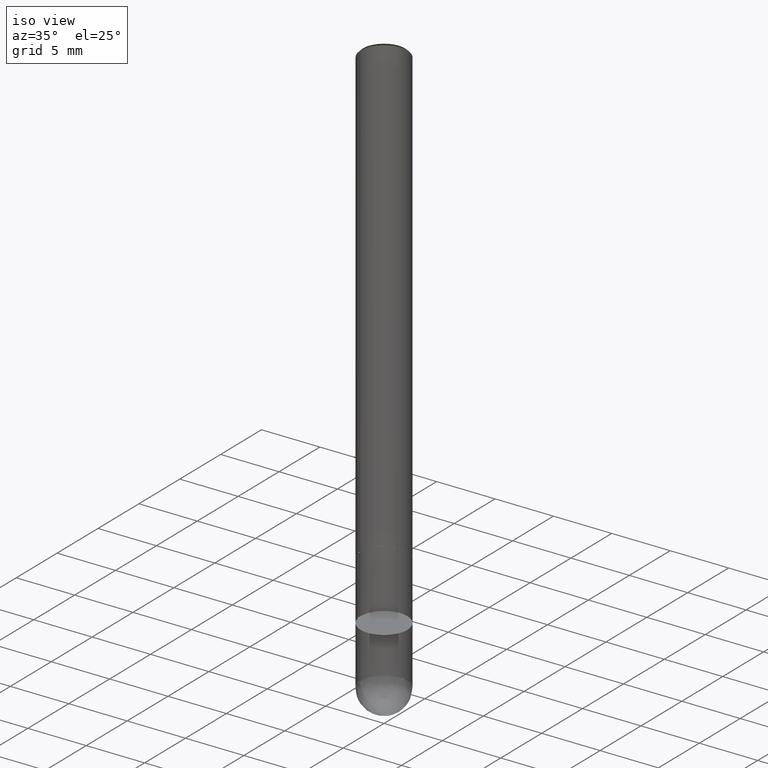
[diagram: clean part render]
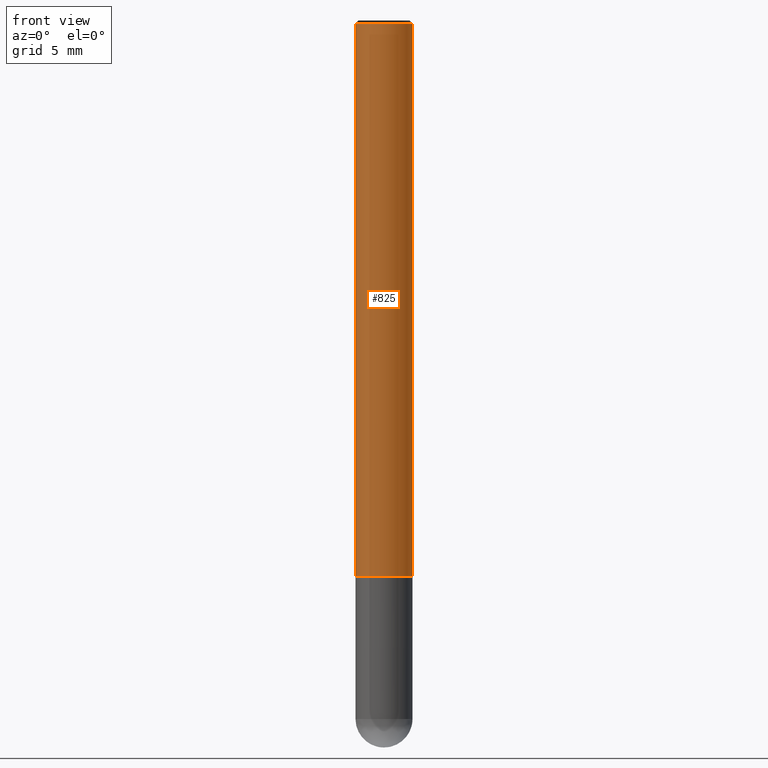
[diagram: tour spotlight — one face highlighted and labeled with its STEP entity id]
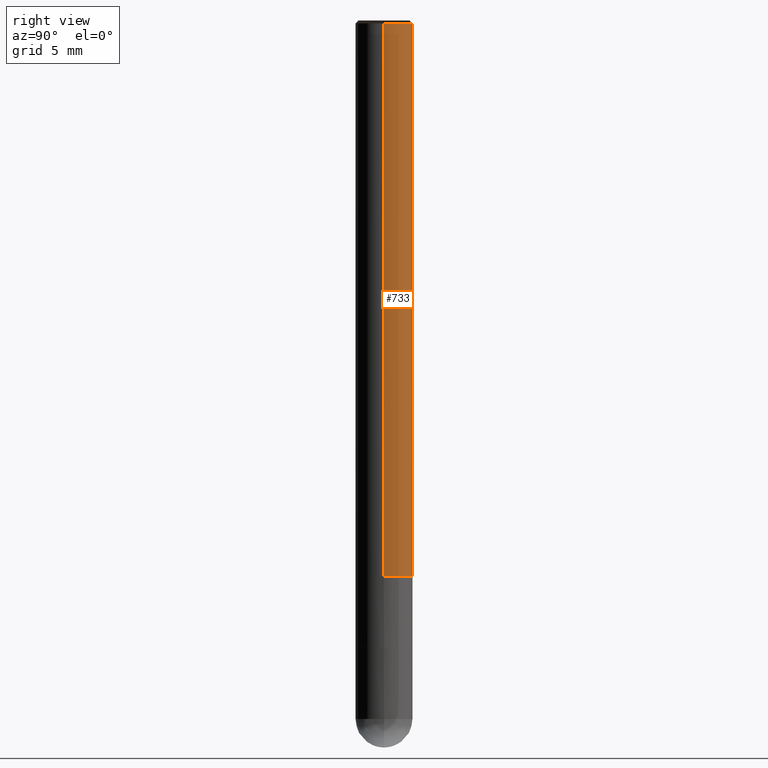
[diagram: tour spotlight — one face highlighted and labeled with its STEP entity id]
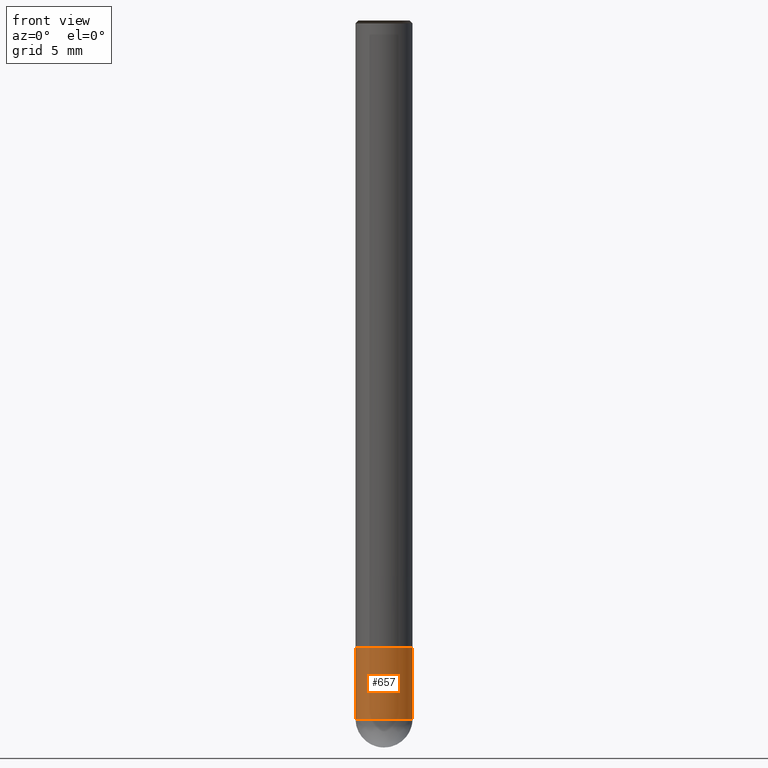
[diagram: tour spotlight — one face highlighted and labeled with its STEP entity id]
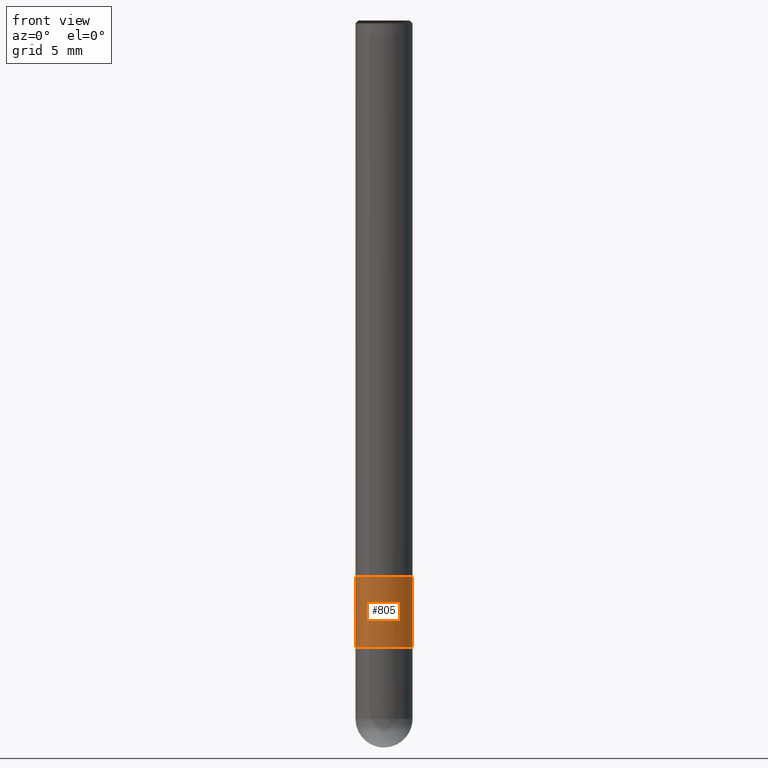
[diagram: tour spotlight — one face highlighted and labeled with its STEP entity id]
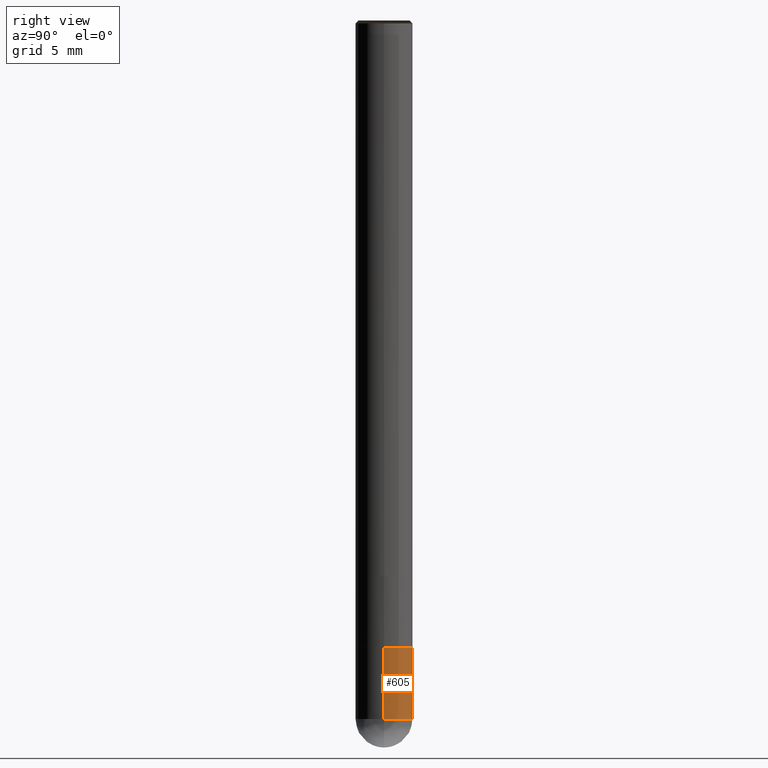
[diagram: tour spotlight — one face highlighted and labeled with its STEP entity id]
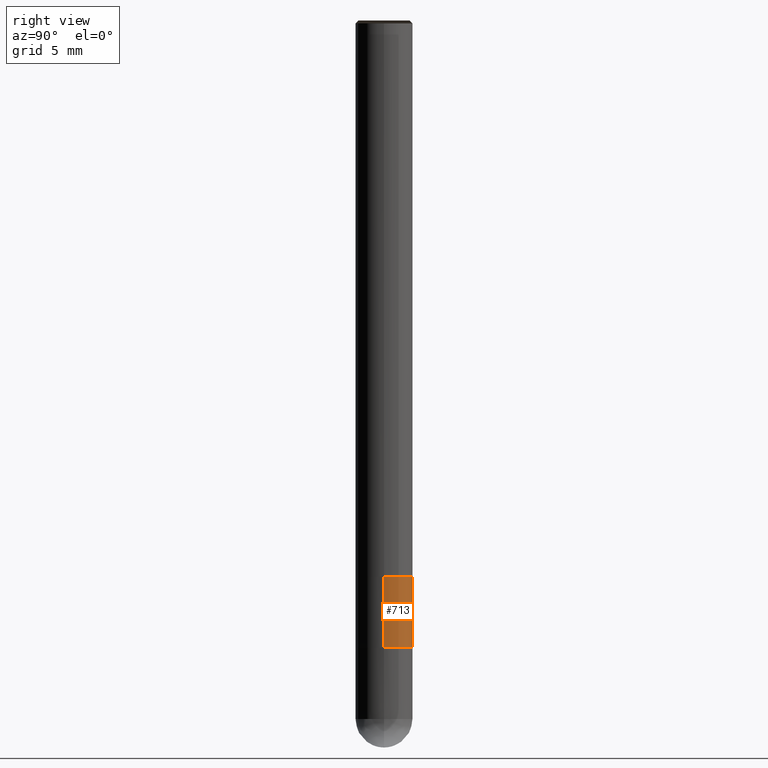
[diagram: tour spotlight — one face highlighted and labeled with its STEP entity id]
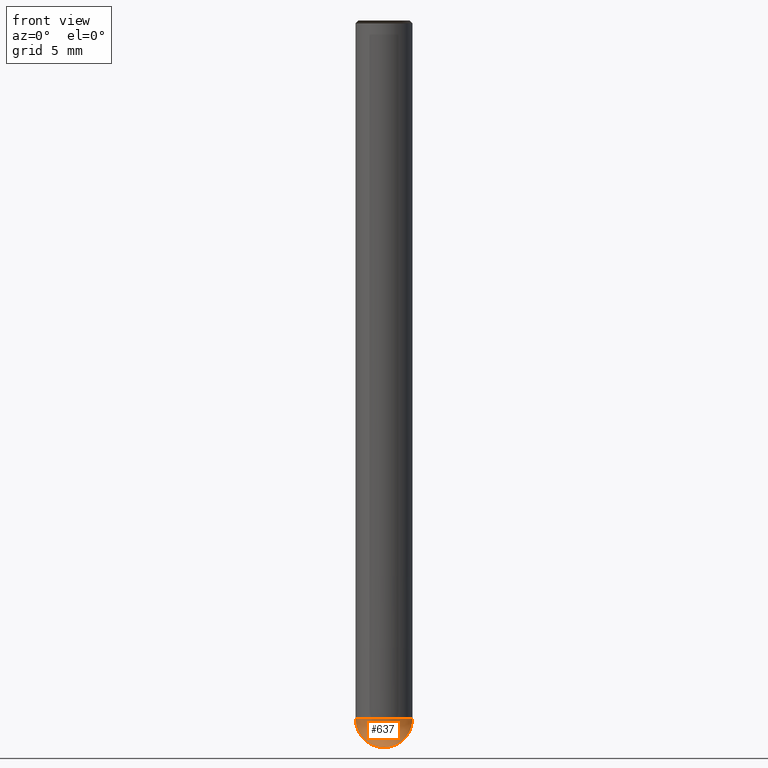
[diagram: tour spotlight — one face highlighted and labeled with its STEP entity id]
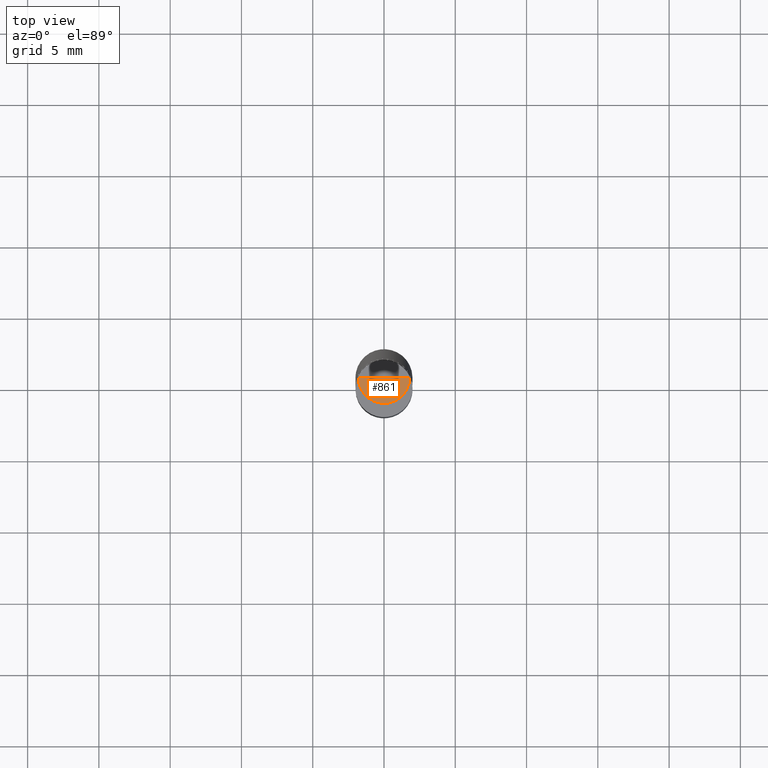
[diagram: tour spotlight — one face highlighted and labeled with its STEP entity id]
A machine part: a face-by-face anatomy tour. The part has 16 B-rep faces; the first image is the clean iso view, then the 8 largest visible faces are spotlighted one at a time (largest first), each with its STEP entity span.

Face 1 — front view, entity #825. In plain terms, the highlighted face is a freeform B-spline surface patch.
Definition (entity closure, byte-faithful):
#538=CARTESIAN_POINT('',(2.0,0.0,0.0));
#542=CARTESIAN_POINT('',(-2.0,0.0,0.0));
#543=CARTESIAN_POINT('',(2.0,0.0,38.8));
#547=CARTESIAN_POINT('',(-2.0,0.0,38.8));
#554=CARTESIAN_POINT('',(-2.0,-2.0,0.0));
#555=CARTESIAN_POINT('',(0.0,-2.0,0.0));
#556=CARTESIAN_POINT('',(2.0,-2.0,0.0));
#557=CARTESIAN_POINT('',(-2.0,-2.0,38.8));
#558=CARTESIAN_POINT('',(0.0,-2.0,38.8));
#559=CARTESIAN_POINT('',(2.0,-2.0,38.8));
#806=(
BOUNDED_SURFACE()
B_SPLINE_SURFACE(1,2,(
(#542,#554,#555,#556,#538),
(#547,#557,#558,#559,#543)
), .UNSPECIFIED.,.F.,.F.,.F.)
B_SPLINE_SURFACE_WITH_KNOTS((2,2),(3,2,3),(
0.0,1.0),(
0.0,0.5,1.0), .UNSPECIFIED.)
GEOMETRIC_REPRESENTATION_ITEM()
RATIONAL_B_SPLINE_SURFACE(((1.0,0.707106781187,1.0,0.707106781187,1.0),
(1.0,0.707106781187,1.0,0.707106781187,1.0)
))
REPRESENTATION_ITEM('')
SURFACE()
);
#807=(
BOUNDED_CURVE()
B_SPLINE_CURVE(2,(#538,#556,#555,#554,#542),.UNSPECIFIED.,.F.,.F.)
B_SPLINE_CURVE_WITH_KNOTS((3,2,3),
(0.0,0.5,1.0),.UNSPECIFIED.)
CURVE()
GEOMETRIC_REPRESENTATION_ITEM()
RATIONAL_B_SPLINE_CURVE((1.0,0.707106781187,1.0,0.707106781187,1.0))
REPRESENTATION_ITEM('')
);
#808=(
BOUNDED_CURVE()
B_SPLINE_CURVE(1,(#542,#547),.UNSPECIFIED.,.F.,.F.)
B_SPLINE_CURVE_WITH_KNOTS((2,2),
(0.0,1.0),.UNSPECIFIED.)
CURVE()
GEOMETRIC_REPRESENTATION_ITEM()
RATIONAL_B_SPLINE_CURVE((1.0,1.0))
REPRESENTATION_ITEM('')
);
#809=(
BOUNDED_CURVE()
B_SPLINE_CURVE(2,(#547,#557,#558,#559,#543),.UNSPECIFIED.,.F.,.F.)
B_SPLINE_CURVE_WITH_KNOTS((3,2,3),
(0.0,0.5,1.0),.UNSPECIFIED.)
CURVE()
GEOMETRIC_REPRESENTATION_ITEM()
RATIONAL_B_SPLINE_CURVE((1.0,0.707106781187,1.0,0.707106781187,1.0))
REPRESENTATION_ITEM('')
);
#810=(
BOUNDED_CURVE()
B_SPLINE_CURVE(1,(#543,#538),.UNSPECIFIED.,.F.,.F.)
B_SPLINE_CURVE_WITH_KNOTS((2,2),
(0.0,1.0),.UNSPECIFIED.)
CURVE()
GEOMETRIC_REPRESENTATION_ITEM()
RATIONAL_B_SPLINE_CURVE((1.0,1.0))
REPRESENTATION_ITEM('')
);
#811=VERTEX_POINT('',#538);
#812=VERTEX_POINT('',#542);
#813=VERTEX_POINT('',#543);
#814=VERTEX_POINT('',#547);
#815=EDGE_CURVE('',#811,#812,#807,.T.);
#816=EDGE_CURVE('',#812,#814,#808,.T.);
#817=EDGE_CURVE('',#814,#813,#809,.T.);
#818=EDGE_CURVE('',#813,#811,#810,.T.);
#819=ORIENTED_EDGE('',*,*,#815,.T.);
#820=ORIENTED_EDGE('',*,*,#816,.T.);
#821=ORIENTED_EDGE('',*,*,#817,.T.);
#822=ORIENTED_EDGE('',*,*,#818,.T.);
#823=EDGE_LOOP('',(#819,#820,#821,#822));
#824=FACE_OUTER_BOUND('',#823,.T.);
#825=ADVANCED_FACE('',(#824),#806,.T.);

Face 2 — right view, entity #733. In plain terms, the highlighted face is a freeform B-spline surface patch.
Definition (entity closure, byte-faithful):
#538=CARTESIAN_POINT('',(2.0,0.0,0.0));
#539=CARTESIAN_POINT('',(2.0,2.0,0.0));
#540=CARTESIAN_POINT('',(0.0,2.0,0.0));
#541=CARTESIAN_POINT('',(-2.0,2.0,0.0));
#542=CARTESIAN_POINT('',(-2.0,0.0,0.0));
#543=CARTESIAN_POINT('',(2.0,0.0,38.8));
#544=CARTESIAN_POINT('',(2.0,2.0,38.8));
#545=CARTESIAN_POINT('',(0.0,2.0,38.8));
#546=CARTESIAN_POINT('',(-2.0,2.0,38.8));
#547=CARTESIAN_POINT('',(-2.0,0.0,38.8));
#714=(
BOUNDED_SURFACE()
B_SPLINE_SURFACE(1,2,(
(#538,#539,#540,#541,#542),
(#543,#544,#545,#546,#547)
), .UNSPECIFIED.,.F.,.F.,.F.)
B_SPLINE_SURFACE_WITH_KNOTS((2,2),(3,2,3),(
0.0,1.0),(
0.0,0.5,1.0), .UNSPECIFIED.)
GEOMETRIC_REPRESENTATION_ITEM()
RATIONAL_B_SPLINE_SURFACE(((1.0,0.707106781187,1.0,0.707106781187,1.0),
(1.0,0.707106781187,1.0,0.707106781187,1.0)
))
REPRESENTATION_ITEM('')
SURFACE()
);
#715=(
BOUNDED_CURVE()
B_SPLINE_CURVE(2,(#542,#541,#540,#539,#538),.UNSPECIFIED.,.F.,.F.)
B_SPLINE_CURVE_WITH_KNOTS((3,2,3),
(0.0,0.5,1.0),.UNSPECIFIED.)
CURVE()
GEOMETRIC_REPRESENTATION_ITEM()
RATIONAL_B_SPLINE_CURVE((1.0,0.707106781187,1.0,0.707106781187,1.0))
REPRESENTATION_ITEM('')
);
#716=(
BOUNDED_CURVE()
B_SPLINE_CURVE(1,(#538,#543),.UNSPECIFIED.,.F.,.F.)
B_SPLINE_CURVE_WITH_KNOTS((2,2),
(0.0,1.0),.UNSPECIFIED.)
CURVE()
GEOMETRIC_REPRESENTATION_ITEM()
RATIONAL_B_SPLINE_CURVE((1.0,1.0))
REPRESENTATION_ITEM('')
);
#717=(
BOUNDED_CURVE()
B_SPLINE_CURVE(2,(#543,#544,#545,#546,#547),.UNSPECIFIED.,.F.,.F.)
B_SPLINE_CURVE_WITH_KNOTS((3,2,3),
(0.0,0.5,1.0),.UNSPECIFIED.)
CURVE()
GEOMETRIC_REPRESENTATION_ITEM()
RATIONAL_B_SPLINE_CURVE((1.0,0.707106781187,1.0,0.707106781187,1.0))
REPRESENTATION_ITEM('')
);
#718=(
BOUNDED_CURVE()
B_SPLINE_CURVE(1,(#547,#542),.UNSPECIFIED.,.F.,.F.)
B_SPLINE_CURVE_WITH_KNOTS((2,2),
(0.0,1.0),.UNSPECIFIED.)
CURVE()
GEOMETRIC_REPRESENTATION_ITEM()
RATIONAL_B_SPLINE_CURVE((1.0,1.0))
REPRESENTATION_ITEM('')
);
#719=VERTEX_POINT('',#538);
#720=VERTEX_POINT('',#542);
#721=VERTEX_POINT('',#543);
#722=VERTEX_POINT('',#547);
#723=EDGE_CURVE('',#720,#719,#715,.T.);
#724=EDGE_CURVE('',#719,#721,#716,.T.);
#725=EDGE_CURVE('',#721,#722,#717,.T.);
#726=EDGE_CURVE('',#722,#720,#718,.T.);
#727=ORIENTED_EDGE('',*,*,#723,.T.);
#728=ORIENTED_EDGE('',*,*,#724,.T.);
#729=ORIENTED_EDGE('',*,*,#725,.T.);
#730=ORIENTED_EDGE('',*,*,#726,.T.);
#731=EDGE_LOOP('',(#727,#728,#729,#730));
#732=FACE_OUTER_BOUND('',#731,.T.);
#733=ADVANCED_FACE('',(#732),#714,.T.);

Face 3 — front view, entity #657. In plain terms, the highlighted face is a freeform B-spline surface patch.
Definition (entity closure, byte-faithful):
#518=CARTESIAN_POINT('',(2.0,0.0,-10.0));
#522=CARTESIAN_POINT('',(-2.0,0.0,-10.0));
#523=CARTESIAN_POINT('',(2.0,0.0,-5.0));
#527=CARTESIAN_POINT('',(-2.0,0.0,-5.0));
#532=CARTESIAN_POINT('',(-2.0,-2.0,-10.0));
#533=CARTESIAN_POINT('',(0.0,-2.0,-10.0));
#534=CARTESIAN_POINT('',(2.0,-2.0,-10.0));
#535=CARTESIAN_POINT('',(-2.0,-2.0,-5.0));
#536=CARTESIAN_POINT('',(0.0,-2.0,-5.0));
#537=CARTESIAN_POINT('',(2.0,-2.0,-5.0));
#638=(
BOUNDED_SURFACE()
B_SPLINE_SURFACE(1,2,(
(#522,#532,#533,#534,#518),
(#527,#535,#536,#537,#523)
), .UNSPECIFIED.,.F.,.F.,.F.)
B_SPLINE_SURFACE_WITH_KNOTS((2,2),(3,2,3),(
0.0,1.0),(
0.0,0.5,1.0), .UNSPECIFIED.)
GEOMETRIC_REPRESENTATION_ITEM()
RATIONAL_B_SPLINE_SURFACE(((1.0,0.707106781187,1.0,0.707106781187,1.0),
(1.0,0.707106781187,1.0,0.707106781187,1.0)
))
REPRESENTATION_ITEM('')
SURFACE()
);
#639=(
BOUNDED_CURVE()
B_SPLINE_CURVE(2,(#518,#534,#533,#532,#522),.UNSPECIFIED.,.F.,.F.)
B_SPLINE_CURVE_WITH_KNOTS((3,2,3),
(0.0,0.5,1.0),.UNSPECIFIED.)
CURVE()
GEOMETRIC_REPRESENTATION_ITEM()
RATIONAL_B_SPLINE_CURVE((1.0,0.707106781187,1.0,0.707106781187,1.0))
REPRESENTATION_ITEM('')
);
#640=(
BOUNDED_CURVE()
B_SPLINE_CURVE(1,(#522,#527),.UNSPECIFIED.,.F.,.F.)
B_SPLINE_CURVE_WITH_KNOTS((2,2),
(0.0,1.0),.UNSPECIFIED.)
CURVE()
GEOMETRIC_REPRESENTATION_ITEM()
RATIONAL_B_SPLINE_CURVE((1.0,1.0))
REPRESENTATION_ITEM('')
);
#641=(
BOUNDED_CURVE()
B_SPLINE_CURVE(2,(#527,#535,#536,#537,#523),.UNSPECIFIED.,.F.,.F.)
B_SPLINE_CURVE_WITH_KNOTS((3,2,3),
(0.0,0.5,1.0),.UNSPECIFIED.)
CURVE()
GEOMETRIC_REPRESENTATION_ITEM()
RATIONAL_B_SPLINE_CURVE((1.0,0.707106781187,1.0,0.707106781187,1.0))
REPRESENTATION_ITEM('')
);
#642=(
BOUNDED_CURVE()
B_SPLINE_CURVE(1,(#523,#518),.UNSPECIFIED.,.F.,.F.)
B_SPLINE_CURVE_WITH_KNOTS((2,2),
(0.0,1.0),.UNSPECIFIED.)
CURVE()
GEOMETRIC_REPRESENTATION_ITEM()
RATIONAL_B_SPLINE_CURVE((1.0,1.0))
REPRESENTATION_ITEM('')
);
#643=VERTEX_POINT('',#518);
#644=VERTEX_POINT('',#522);
#645=VERTEX_POINT('',#523);
#646=VERTEX_POINT('',#527);
#647=EDGE_CURVE('',#643,#644,#639,.T.);
#648=EDGE_CURVE('',#644,#646,#640,.T.);
#649=EDGE_CURVE('',#646,#645,#641,.T.);
#650=EDGE_CURVE('',#645,#643,#642,.T.);
#651=ORIENTED_EDGE('',*,*,#647,.T.);
#652=ORIENTED_EDGE('',*,*,#648,.T.);
#653=ORIENTED_EDGE('',*,*,#649,.T.);
#654=ORIENTED_EDGE('',*,*,#650,.T.);
#655=EDGE_LOOP('',(#651,#652,#653,#654));
#656=FACE_OUTER_BOUND('',#655,.T.);
#657=ADVANCED_FACE('',(#656),#638,.T.);

Face 4 — front view, entity #805. In plain terms, the highlighted face is a freeform B-spline surface patch.
Definition (entity closure, byte-faithful):
#523=CARTESIAN_POINT('',(2.0,0.0,-5.0));
#527=CARTESIAN_POINT('',(-2.0,0.0,-5.0));
#535=CARTESIAN_POINT('',(-2.0,-2.0,-5.0));
#536=CARTESIAN_POINT('',(0.0,-2.0,-5.0));
#537=CARTESIAN_POINT('',(2.0,-2.0,-5.0));
#538=CARTESIAN_POINT('',(2.0,0.0,0.0));
#542=CARTESIAN_POINT('',(-2.0,0.0,0.0));
#554=CARTESIAN_POINT('',(-2.0,-2.0,0.0));
#555=CARTESIAN_POINT('',(0.0,-2.0,0.0));
#556=CARTESIAN_POINT('',(2.0,-2.0,0.0));
#786=(
BOUNDED_SURFACE()
B_SPLINE_SURFACE(1,2,(
(#527,#535,#536,#537,#523),
(#542,#554,#555,#556,#538)
), .UNSPECIFIED.,.F.,.F.,.F.)
B_SPLINE_SURFACE_WITH_KNOTS((2,2),(3,2,3),(
0.0,1.0),(
0.0,0.5,1.0), .UNSPECIFIED.)
GEOMETRIC_REPRESENTATION_ITEM()
RATIONAL_B_SPLINE_SURFACE(((1.0,0.707106781187,1.0,0.707106781187,1.0),
(1.0,0.707106781187,1.0,0.707106781187,1.0)
))
REPRESENTATION_ITEM('')
SURFACE()
);
#787=(
BOUNDED_CURVE()
B_SPLINE_CURVE(2,(#523,#537,#536,#535,#527),.UNSPECIFIED.,.F.,.F.)
B_SPLINE_CURVE_WITH_KNOTS((3,2,3),
(0.0,0.5,1.0),.UNSPECIFIED.)
CURVE()
GEOMETRIC_REPRESENTATION_ITEM()
RATIONAL_B_SPLINE_CURVE((1.0,0.707106781187,1.0,0.707106781187,1.0))
REPRESENTATION_ITEM('')
);
#788=(
BOUNDED_CURVE()
B_SPLINE_CURVE(1,(#527,#542),.UNSPECIFIED.,.F.,.F.)
B_SPLINE_CURVE_WITH_KNOTS((2,2),
(0.0,1.0),.UNSPECIFIED.)
CURVE()
GEOMETRIC_REPRESENTATION_ITEM()
RATIONAL_B_SPLINE_CURVE((1.0,1.0))
REPRESENTATION_ITEM('')
);
#789=(
BOUNDED_CURVE()
B_SPLINE_CURVE(2,(#542,#554,#555,#556,#538),.UNSPECIFIED.,.F.,.F.)
B_SPLINE_CURVE_WITH_KNOTS((3,2,3),
(0.0,0.5,1.0),.UNSPECIFIED.)
CURVE()
GEOMETRIC_REPRESENTATION_ITEM()
RATIONAL_B_SPLINE_CURVE((1.0,0.707106781187,1.0,0.707106781187,1.0))
REPRESENTATION_ITEM('')
);
#790=(
BOUNDED_CURVE()
B_SPLINE_CURVE(1,(#538,#523),.UNSPECIFIED.,.F.,.F.)
B_SPLINE_CURVE_WITH_KNOTS((2,2),
(0.0,1.0),.UNSPECIFIED.)
CURVE()
GEOMETRIC_REPRESENTATION_ITEM()
RATIONAL_B_SPLINE_CURVE((1.0,1.0))
REPRESENTATION_ITEM('')
);
#791=VERTEX_POINT('',#523);
#792=VERTEX_POINT('',#527);
#793=VERTEX_POINT('',#538);
#794=VERTEX_POINT('',#542);
#795=EDGE_CURVE('',#791,#792,#787,.T.);
#796=EDGE_CURVE('',#792,#794,#788,.T.);
#797=EDGE_CURVE('',#794,#793,#789,.T.);
#798=EDGE_CURVE('',#793,#791,#790,.T.);
#799=ORIENTED_EDGE('',*,*,#795,.T.);
#800=ORIENTED_EDGE('',*,*,#796,.T.);
#801=ORIENTED_EDGE('',*,*,#797,.T.);
#802=ORIENTED_EDGE('',*,*,#798,.T.);
#803=EDGE_LOOP('',(#799,#800,#801,#802));
#804=FACE_OUTER_BOUND('',#803,.T.);
#805=ADVANCED_FACE('',(#804),#786,.T.);

Face 5 — right view, entity #605. In plain terms, the highlighted face is a freeform B-spline surface patch.
Definition (entity closure, byte-faithful):
#518=CARTESIAN_POINT('',(2.0,0.0,-10.0));
#519=CARTESIAN_POINT('',(2.0,2.0,-10.0));
#520=CARTESIAN_POINT('',(0.0,2.0,-10.0));
#521=CARTESIAN_POINT('',(-2.0,2.0,-10.0));
#522=CARTESIAN_POINT('',(-2.0,0.0,-10.0));
#523=CARTESIAN_POINT('',(2.0,0.0,-5.0));
#524=CARTESIAN_POINT('',(2.0,2.0,-5.0));
#525=CARTESIAN_POINT('',(0.0,2.0,-5.0));
#526=CARTESIAN_POINT('',(-2.0,2.0,-5.0));
#527=CARTESIAN_POINT('',(-2.0,0.0,-5.0));
#586=(
BOUNDED_SURFACE()
B_SPLINE_SURFACE(1,2,(
(#518,#519,#520,#521,#522),
(#523,#524,#525,#526,#527)
), .UNSPECIFIED.,.F.,.F.,.F.)
B_SPLINE_SURFACE_WITH_KNOTS((2,2),(3,2,3),(
0.0,1.0),(
0.0,0.5,1.0), .UNSPECIFIED.)
GEOMETRIC_REPRESENTATION_ITEM()
RATIONAL_B_SPLINE_SURFACE(((1.0,0.707106781187,1.0,0.707106781187,1.0),
(1.0,0.707106781187,1.0,0.707106781187,1.0)
))
REPRESENTATION_ITEM('')
SURFACE()
);
#587=(
BOUNDED_CURVE()
B_SPLINE_CURVE(2,(#522,#521,#520,#519,#518),.UNSPECIFIED.,.F.,.F.)
B_SPLINE_CURVE_WITH_KNOTS((3,2,3),
(0.0,0.5,1.0),.UNSPECIFIED.)
CURVE()
GEOMETRIC_REPRESENTATION_ITEM()
RATIONAL_B_SPLINE_CURVE((1.0,0.707106781187,1.0,0.707106781187,1.0))
REPRESENTATION_ITEM('')
);
#588=(
BOUNDED_CURVE()
B_SPLINE_CURVE(1,(#518,#523),.UNSPECIFIED.,.F.,.F.)
B_SPLINE_CURVE_WITH_KNOTS((2,2),
(0.0,1.0),.UNSPECIFIED.)
CURVE()
GEOMETRIC_REPRESENTATION_ITEM()
RATIONAL_B_SPLINE_CURVE((1.0,1.0))
REPRESENTATION_ITEM('')
);
#589=(
BOUNDED_CURVE()
B_SPLINE_CURVE(2,(#523,#524,#525,#526,#527),.UNSPECIFIED.,.F.,.F.)
B_SPLINE_CURVE_WITH_KNOTS((3,2,3),
(0.0,0.5,1.0),.UNSPECIFIED.)
CURVE()
GEOMETRIC_REPRESENTATION_ITEM()
RATIONAL_B_SPLINE_CURVE((1.0,0.707106781187,1.0,0.707106781187,1.0))
REPRESENTATION_ITEM('')
);
#590=(
BOUNDED_CURVE()
B_SPLINE_CURVE(1,(#527,#522),.UNSPECIFIED.,.F.,.F.)
B_SPLINE_CURVE_WITH_KNOTS((2,2),
(0.0,1.0),.UNSPECIFIED.)
CURVE()
GEOMETRIC_REPRESENTATION_ITEM()
RATIONAL_B_SPLINE_CURVE((1.0,1.0))
REPRESENTATION_ITEM('')
);
#591=VERTEX_POINT('',#518);
#592=VERTEX_POINT('',#522);
#593=VERTEX_POINT('',#523);
#594=VERTEX_POINT('',#527);
#595=EDGE_CURVE('',#592,#591,#587,.T.);
#596=EDGE_CURVE('',#591,#593,#588,.T.);
#597=EDGE_CURVE('',#593,#594,#589,.T.);
#598=EDGE_CURVE('',#594,#592,#590,.T.);
#599=ORIENTED_EDGE('',*,*,#595,.T.);
#600=ORIENTED_EDGE('',*,*,#596,.T.);
#601=ORIENTED_EDGE('',*,*,#597,.T.);
#602=ORIENTED_EDGE('',*,*,#598,.T.);
#603=EDGE_LOOP('',(#599,#600,#601,#602));
#604=FACE_OUTER_BOUND('',#603,.T.);
#605=ADVANCED_FACE('',(#604),#586,.T.);

Face 6 — right view, entity #713. In plain terms, the highlighted face is a freeform B-spline surface patch.
Definition (entity closure, byte-faithful):
#523=CARTESIAN_POINT('',(2.0,0.0,-5.0));
#524=CARTESIAN_POINT('',(2.0,2.0,-5.0));
#525=CARTESIAN_POINT('',(0.0,2.0,-5.0));
#526=CARTESIAN_POINT('',(-2.0,2.0,-5.0));
#527=CARTESIAN_POINT('',(-2.0,0.0,-5.0));
#538=CARTESIAN_POINT('',(2.0,0.0,0.0));
#539=CARTESIAN_POINT('',(2.0,2.0,0.0));
#540=CARTESIAN_POINT('',(0.0,2.0,0.0));
#541=CARTESIAN_POINT('',(-2.0,2.0,0.0));
#542=CARTESIAN_POINT('',(-2.0,0.0,0.0));
#694=(
BOUNDED_SURFACE()
B_SPLINE_SURFACE(1,2,(
(#523,#524,#525,#526,#527),
(#538,#539,#540,#541,#542)
), .UNSPECIFIED.,.F.,.F.,.F.)
B_SPLINE_SURFACE_WITH_KNOTS((2,2),(3,2,3),(
0.0,1.0),(
0.0,0.5,1.0), .UNSPECIFIED.)
GEOMETRIC_REPRESENTATION_ITEM()
RATIONAL_B_SPLINE_SURFACE(((1.0,0.707106781187,1.0,0.707106781187,1.0),
(1.0,0.707106781187,1.0,0.707106781187,1.0)
))
REPRESENTATION_ITEM('')
SURFACE()
);
#695=(
BOUNDED_CURVE()
B_SPLINE_CURVE(2,(#527,#526,#525,#524,#523),.UNSPECIFIED.,.F.,.F.)
B_SPLINE_CURVE_WITH_KNOTS((3,2,3),
(0.0,0.5,1.0),.UNSPECIFIED.)
CURVE()
GEOMETRIC_REPRESENTATION_ITEM()
RATIONAL_B_SPLINE_CURVE((1.0,0.707106781187,1.0,0.707106781187,1.0))
REPRESENTATION_ITEM('')
);
#696=(
BOUNDED_CURVE()
B_SPLINE_CURVE(1,(#523,#538),.UNSPECIFIED.,.F.,.F.)
B_SPLINE_CURVE_WITH_KNOTS((2,2),
(0.0,1.0),.UNSPECIFIED.)
CURVE()
GEOMETRIC_REPRESENTATION_ITEM()
RATIONAL_B_SPLINE_CURVE((1.0,1.0))
REPRESENTATION_ITEM('')
);
#697=(
BOUNDED_CURVE()
B_SPLINE_CURVE(2,(#538,#539,#540,#541,#542),.UNSPECIFIED.,.F.,.F.)
B_SPLINE_CURVE_WITH_KNOTS((3,2,3),
(0.0,0.5,1.0),.UNSPECIFIED.)
CURVE()
GEOMETRIC_REPRESENTATION_ITEM()
RATIONAL_B_SPLINE_CURVE((1.0,0.707106781187,1.0,0.707106781187,1.0))
REPRESENTATION_ITEM('')
);
#698=(
BOUNDED_CURVE()
B_SPLINE_CURVE(1,(#542,#527),.UNSPECIFIED.,.F.,.F.)
B_SPLINE_CURVE_WITH_KNOTS((2,2),
(0.0,1.0),.UNSPECIFIED.)
CURVE()
GEOMETRIC_REPRESENTATION_ITEM()
RATIONAL_B_SPLINE_CURVE((1.0,1.0))
REPRESENTATION_ITEM('')
);
#699=VERTEX_POINT('',#523);
#700=VERTEX_POINT('',#527);
#701=VERTEX_POINT('',#538);
#702=VERTEX_POINT('',#542);
#703=EDGE_CURVE('',#700,#699,#695,.T.);
#704=EDGE_CURVE('',#699,#701,#696,.T.);
#705=EDGE_CURVE('',#701,#702,#697,.T.);
#706=EDGE_CURVE('',#702,#700,#698,.T.);
#707=ORIENTED_EDGE('',*,*,#703,.T.);
#708=ORIENTED_EDGE('',*,*,#704,.T.);
#709=ORIENTED_EDGE('',*,*,#705,.T.);
#710=ORIENTED_EDGE('',*,*,#706,.T.);
#711=EDGE_LOOP('',(#707,#708,#709,#710));
#712=FACE_OUTER_BOUND('',#711,.T.);
#713=ADVANCED_FACE('',(#712),#694,.T.);

Face 7 — front view, entity #637. In plain terms, the highlighted face is a freeform B-spline surface patch.
Definition (entity closure, byte-faithful):
#512=CARTESIAN_POINT('',(0.0,0.0,-12.0));
#513=CARTESIAN_POINT('',(2.0,0.0,-12.0));
#517=CARTESIAN_POINT('',(-2.0,0.0,-12.0));
#518=CARTESIAN_POINT('',(2.0,0.0,-10.0));
#522=CARTESIAN_POINT('',(-2.0,0.0,-10.0));
#529=CARTESIAN_POINT('',(-2.0,-2.0,-12.0));
#530=CARTESIAN_POINT('',(0.0,-2.0,-12.0));
#531=CARTESIAN_POINT('',(2.0,-2.0,-12.0));
#532=CARTESIAN_POINT('',(-2.0,-2.0,-10.0));
#533=CARTESIAN_POINT('',(0.0,-2.0,-10.0));
#534=CARTESIAN_POINT('',(2.0,-2.0,-10.0));
#622=(
BOUNDED_SURFACE()
B_SPLINE_SURFACE(2,2,(
(#512,#512,#512,#512,#512),
(#517,#529,#530,#531,#513),
(#522,#532,#533,#534,#518)
), .UNSPECIFIED.,.F.,.F.,.F.)
B_SPLINE_SURFACE_WITH_KNOTS((3,3),(3,2,3),(
0.0,1.0),(
0.0,0.5,1.0), .UNSPECIFIED.)
GEOMETRIC_REPRESENTATION_ITEM()
RATIONAL_B_SPLINE_SURFACE(((1.0,0.707106781187,1.0,0.707106781187,1.0),
(0.707106781187,0.5,0.707106781187,0.5,0.707106781187),
(1.0,0.707106781187,1.0,0.707106781187,1.0)
))
REPRESENTATION_ITEM('')
SURFACE()
);
#623=(
BOUNDED_CURVE()
B_SPLINE_CURVE(2,(#518,#513,#512),.UNSPECIFIED.,.F.,.F.)
B_SPLINE_CURVE_WITH_KNOTS((3,3),
(0.0,1.0),.UNSPECIFIED.)
CURVE()
GEOMETRIC_REPRESENTATION_ITEM()
RATIONAL_B_SPLINE_CURVE((1.0,0.707106781187,1.0))
REPRESENTATION_ITEM('')
);
#624=(
BOUNDED_CURVE()
B_SPLINE_CURVE(2,(#512,#517,#522),.UNSPECIFIED.,.F.,.F.)
B_SPLINE_CURVE_WITH_KNOTS((3,3),
(0.0,1.0),.UNSPECIFIED.)
CURVE()
GEOMETRIC_REPRESENTATION_ITEM()
RATIONAL_B_SPLINE_CURVE((1.0,0.707106781187,1.0))
REPRESENTATION_ITEM('')
);
#625=(
BOUNDED_CURVE()
B_SPLINE_CURVE(2,(#522,#532,#533,#534,#518),.UNSPECIFIED.,.F.,.F.)
B_SPLINE_CURVE_WITH_KNOTS((3,2,3),
(0.0,0.5,1.0),.UNSPECIFIED.)
CURVE()
GEOMETRIC_REPRESENTATION_ITEM()
RATIONAL_B_SPLINE_CURVE((1.0,0.707106781187,1.0,0.707106781187,1.0))
REPRESENTATION_ITEM('')
);
#626=VERTEX_POINT('',#512);
#627=VERTEX_POINT('',#518);
#628=VERTEX_POINT('',#522);
#629=EDGE_CURVE('',#627,#626,#623,.T.);
#630=EDGE_CURVE('',#626,#628,#624,.T.);
#631=EDGE_CURVE('',#628,#627,#625,.T.);
#632=ORIENTED_EDGE('',*,*,#629,.T.);
#633=ORIENTED_EDGE('',*,*,#630,.T.);
#634=ORIENTED_EDGE('',*,*,#631,.T.);
#635=EDGE_LOOP('',(#632,#633,#634));
#636=FACE_OUTER_BOUND('',#635,.T.);
#637=ADVANCED_FACE('',(#636),#622,.T.);

Face 8 — top view, entity #861. In plain terms, the highlighted face is a freeform B-spline surface patch.
Definition (entity closure, byte-faithful):
#548=CARTESIAN_POINT('',(1.8,0.0,39.0));
#552=CARTESIAN_POINT('',(-1.8,0.0,39.0));
#553=CARTESIAN_POINT('',(0.0,0.0,39.0));
#560=CARTESIAN_POINT('',(-1.8,-1.8,39.0));
#561=CARTESIAN_POINT('',(0.0,-1.8,39.0));
#562=CARTESIAN_POINT('',(1.8,-1.8,39.0));
#846=(
BOUNDED_SURFACE()
B_SPLINE_SURFACE(1,2,(
(#552,#560,#561,#562,#548),
(#553,#553,#553,#553,#553)
), .UNSPECIFIED.,.F.,.F.,.F.)
B_SPLINE_SURFACE_WITH_KNOTS((2,2),(3,2,3),(
0.0,1.0),(
0.0,0.5,1.0), .UNSPECIFIED.)
GEOMETRIC_REPRESENTATION_ITEM()
RATIONAL_B_SPLINE_SURFACE(((1.0,0.707106781187,1.0,0.707106781187,1.0),
(1.0,0.707106781187,1.0,0.707106781187,1.0)
))
REPRESENTATION_ITEM('')
SURFACE()
);
#847=(
BOUNDED_CURVE()
B_SPLINE_CURVE(2,(#548,#562,#561,#560,#552),.UNSPECIFIED.,.F.,.F.)
B_SPLINE_CURVE_WITH_KNOTS((3,2,3),
(0.0,0.5,1.0),.UNSPECIFIED.)
CURVE()
GEOMETRIC_REPRESENTATION_ITEM()
RATIONAL_B_SPLINE_CURVE((1.0,0.707106781187,1.0,0.707106781187,1.0))
REPRESENTATION_ITEM('')
);
#848=(
BOUNDED_CURVE()
B_SPLINE_CURVE(1,(#552,#553),.UNSPECIFIED.,.F.,.F.)
B_SPLINE_CURVE_WITH_KNOTS((2,2),
(0.0,1.0),.UNSPECIFIED.)
CURVE()
GEOMETRIC_REPRESENTATION_ITEM()
RATIONAL_B_SPLINE_CURVE((1.0,1.0))
REPRESENTATION_ITEM('')
);
#849=(
BOUNDED_CURVE()
B_SPLINE_CURVE(1,(#553,#548),.UNSPECIFIED.,.F.,.F.)
B_SPLINE_CURVE_WITH_KNOTS((2,2),
(0.0,1.0),.UNSPECIFIED.)
CURVE()
GEOMETRIC_REPRESENTATION_ITEM()
RATIONAL_B_SPLINE_CURVE((1.0,1.0))
REPRESENTATION_ITEM('')
);
#850=VERTEX_POINT('',#548);
#851=VERTEX_POINT('',#552);
#852=VERTEX_POINT('',#553);
#853=EDGE_CURVE('',#850,#851,#847,.T.);
#854=EDGE_CURVE('',#851,#852,#848,.T.);
#855=EDGE_CURVE('',#852,#850,#849,.T.);
#856=ORIENTED_EDGE('',*,*,#853,.T.);
#857=ORIENTED_EDGE('',*,*,#854,.T.);
#858=ORIENTED_EDGE('',*,*,#855,.T.);
#859=EDGE_LOOP('',(#856,#857,#858));
#860=FACE_OUTER_BOUND('',#859,.T.);
#861=ADVANCED_FACE('',(#860),#846,.T.);